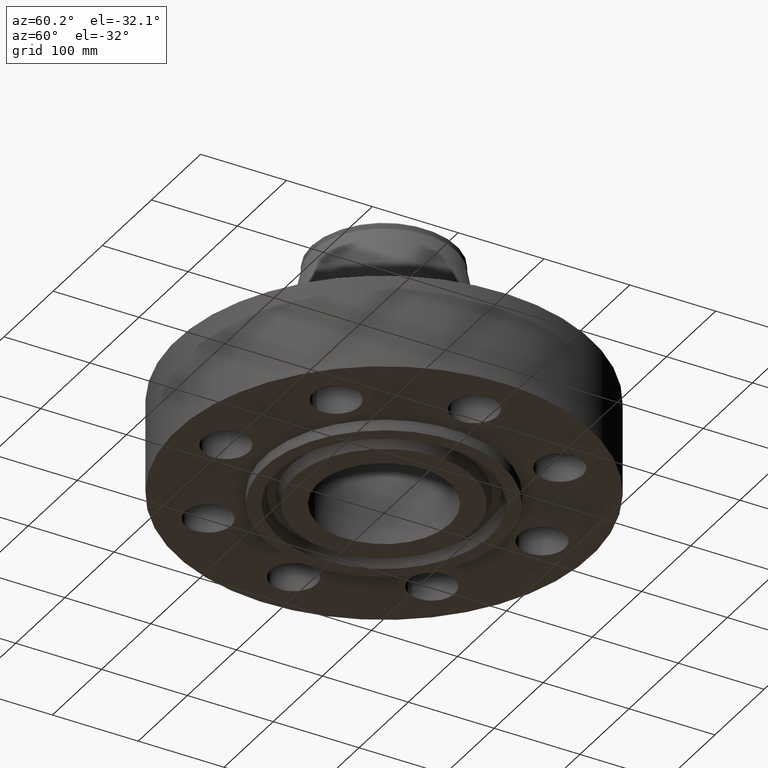
[diagram: clean part render]
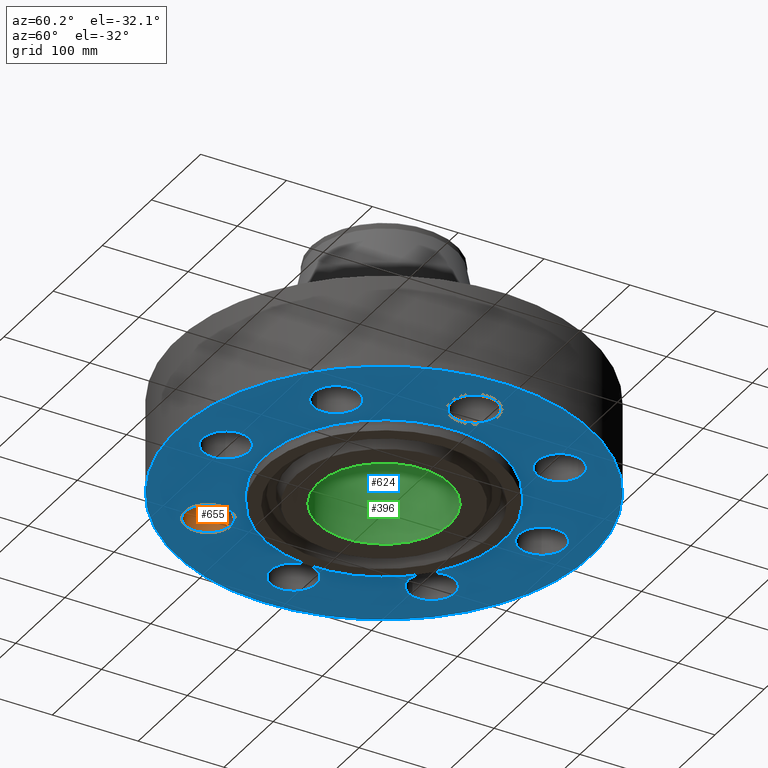
[diagram: same view with three faces highlighted in distinct colors, each labeled with its STEP entity id]
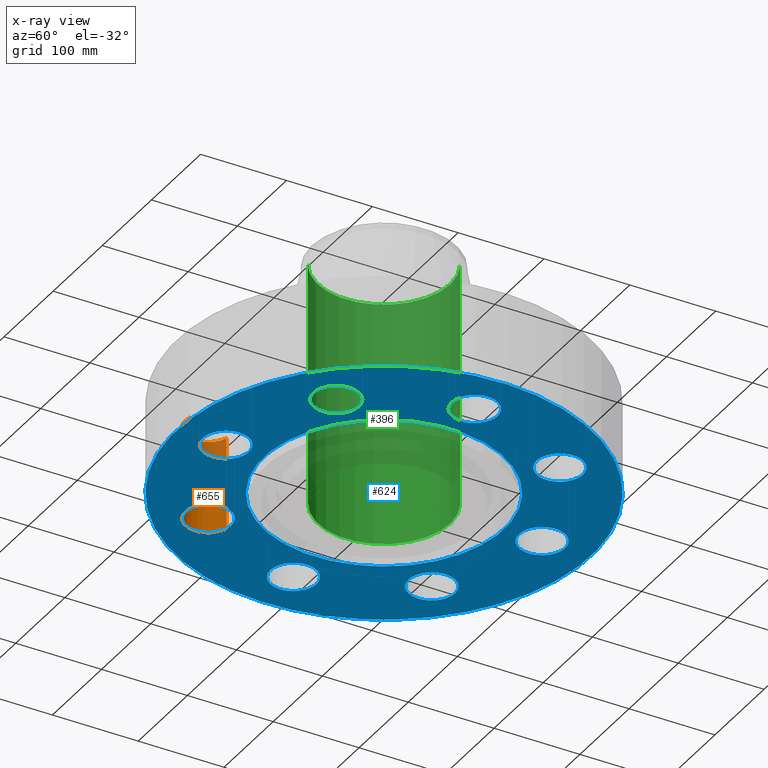
[diagram: x-ray of the same camera — body ghosted, the three highlighted faces saturated]
A machine part, auxiliary view with three faces highlighted in distinct colors.
The next image is the same camera in x-ray (body ghosted, the three faces saturated) — at least one of them is partly hidden behind the body in this view.
Their STEP definitions:

[orange] entity #655 — the highlighted cylindrical surface (edge-blend (fillet) strip) has radius 26.924 mm, axis along (0, 0, -1).
#572=AXIS2_PLACEMENT_3D('Circle Axis2P3D',#570,#571,$) ;
#628=AXIS2_PLACEMENT_3D('Cylinder Axis2P3D',#625,#626,#627) ;
#646=AXIS2_PLACEMENT_3D('Circle Axis2P3D',#644,#645,$) ;
#570=CARTESIAN_POINT('Axis2P3D Location',(-5.12652416362,-5.12652416362,0.)) ;
#574=CARTESIAN_POINT('Vertex',(-4.82809226061,-6.14364677141,0.)) ;
#576=CARTESIAN_POINT('Vertex',(-5.42495606664,-4.10940155584,5.59482469102E-016)) ;
#625=CARTESIAN_POINT('Axis2P3D Location',(-5.12652416362,-5.12652416362,4.24606299214)) ;
#630=CARTESIAN_POINT('Line Origine',(-4.82809226061,-6.14364677141,2.12500000001)) ;
#634=CARTESIAN_POINT('Vertex',(-4.82809226061,-6.14364677141,4.25000000002)) ;
#637=CARTESIAN_POINT('Line Origine',(-5.42495606664,-4.10940155584,2.12500000001)) ;
#641=CARTESIAN_POINT('Vertex',(-5.42495606664,-4.10940155584,4.25000000002)) ;
#644=CARTESIAN_POINT('Axis2P3D Location',(-5.12652416362,-5.12652416362,4.25000000002)) ;
#571=DIRECTION('Axis2P3D Direction',(0.,0.,-0.0393700787402)) ;
#626=DIRECTION('Axis2P3D Direction',(0.,0.,-0.0393700787402)) ;
#627=DIRECTION('Axis2P3D XDirection',(-0.0110842335096,0.0377775444876,0.)) ;
#631=DIRECTION('Vector Direction',(0.,0.,-0.0393700787402)) ;
#638=DIRECTION('Vector Direction',(0.,0.,-0.0393700787402)) ;
#645=DIRECTION('Axis2P3D Direction',(0.,0.,-0.0393700787402)) ;
#632=VECTOR('Line Direction',#631,0.0393700787402) ;
#639=VECTOR('Line Direction',#638,0.0393700787402) ;
#650=ORIENTED_EDGE('',*,*,#636,.F.) ;
#651=ORIENTED_EDGE('',*,*,#578,.T.) ;
#652=ORIENTED_EDGE('',*,*,#643,.T.) ;
#653=ORIENTED_EDGE('',*,*,#648,.F.) ;
#655=ADVANCED_FACE('PartBody',(#654),#629,.F.) ;
#573=CIRCLE('generated circle',#572,1.06) ;
#647=CIRCLE('generated circle',#646,1.06) ;
#629=CYLINDRICAL_SURFACE('generated cylinder',#628,1.06) ;
#578=EDGE_CURVE('',#575,#577,#573,.T.) ;
#636=EDGE_CURVE('',#575,#635,#633,.F.) ;
#643=EDGE_CURVE('',#577,#642,#640,.F.) ;
#648=EDGE_CURVE('',#635,#642,#647,.T.) ;
#649=EDGE_LOOP('',(#650,#651,#652,#653)) ;
#654=FACE_OUTER_BOUND('',#649,.T.) ;
#633=LINE('Line',#630,#632) ;
#640=LINE('Line',#637,#639) ;
#575=VERTEX_POINT('',#574) ;
#577=VERTEX_POINT('',#576) ;
#635=VERTEX_POINT('',#634) ;
#642=VERTEX_POINT('',#641) ;

[blue] entity #624 — the highlighted planar face has unit normal (0, 0, -1).
#51=AXIS2_PLACEMENT_3D('Circle Axis2P3D',#49,#50,$) ;
#77=AXIS2_PLACEMENT_3D('Circle Axis2P3D',#75,#76,$) ;
#99=AXIS2_PLACEMENT_3D('Circle Axis2P3D',#97,#98,$) ;
#134=AXIS2_PLACEMENT_3D('Circle Axis2P3D',#132,#133,$) ;
#447=AXIS2_PLACEMENT_3D('Circle Axis2P3D',#445,#446,$) ;
#471=AXIS2_PLACEMENT_3D('Circle Axis2P3D',#469,#470,$) ;
#484=AXIS2_PLACEMENT_3D('Plane Axis2P3D',#481,#482,#483) ;
#500=AXIS2_PLACEMENT_3D('Circle Axis2P3D',#498,#499,$) ;
#509=AXIS2_PLACEMENT_3D('Circle Axis2P3D',#507,#508,$) ;
#518=AXIS2_PLACEMENT_3D('Circle Axis2P3D',#516,#517,$) ;
#527=AXIS2_PLACEMENT_3D('Circle Axis2P3D',#525,#526,$) ;
#536=AXIS2_PLACEMENT_3D('Circle Axis2P3D',#534,#535,$) ;
#545=AXIS2_PLACEMENT_3D('Circle Axis2P3D',#543,#544,$) ;
#554=AXIS2_PLACEMENT_3D('Circle Axis2P3D',#552,#553,$) ;
#563=AXIS2_PLACEMENT_3D('Circle Axis2P3D',#561,#562,$) ;
#572=AXIS2_PLACEMENT_3D('Circle Axis2P3D',#570,#571,$) ;
#581=AXIS2_PLACEMENT_3D('Circle Axis2P3D',#579,#580,$) ;
#590=AXIS2_PLACEMENT_3D('Circle Axis2P3D',#588,#589,$) ;
#599=AXIS2_PLACEMENT_3D('Circle Axis2P3D',#597,#598,$) ;
#608=AXIS2_PLACEMENT_3D('Circle Axis2P3D',#606,#607,$) ;
#617=AXIS2_PLACEMENT_3D('Circle Axis2P3D',#615,#616,$) ;
#44=CARTESIAN_POINT('Vertex',(-0.930237515608,7.75819107095,5.59482469102E-016)) ;
#49=CARTESIAN_POINT('Axis2P3D Location',(0.,7.25000000003,0.)) ;
#53=CARTESIAN_POINT('Vertex',(0.930237515608,6.74180892911,5.59482469102E-016)) ;
#75=CARTESIAN_POINT('Axis2P3D Location',(0.,7.25000000003,0.)) ;
#97=CARTESIAN_POINT('Axis2P3D Location',(0.,0.,1.1189649382E-015)) ;
#101=CARTESIAN_POINT('Vertex',(-4.55454261676,-8.33703433799,1.1189649382E-015)) ;
#103=CARTESIAN_POINT('Vertex',(4.55454261676,8.33703433799,1.1189649382E-015)) ;
#132=CARTESIAN_POINT('Axis2P3D Location',(0.,0.,1.1189649382E-015)) ;
#442=CARTESIAN_POINT('Vertex',(-2.63684046233,-4.82670409042,1.1189649382E-015)) ;
#445=CARTESIAN_POINT('Axis2P3D Location',(0.,0.,1.1189649382E-015)) ;
#449=CARTESIAN_POINT('Vertex',(2.63684046233,4.82670409042,1.1189649382E-015)) ;
#469=CARTESIAN_POINT('Axis2P3D Location',(0.,0.,1.1189649382E-015)) ;
#481=CARTESIAN_POINT('Axis2P3D Location',(0.,5.50000000002,0.)) ;
#498=CARTESIAN_POINT('Axis2P3D Location',(5.12652416362,5.12652416362,0.)) ;
#502=CARTESIAN_POINT('Vertex',(4.82809226061,6.14364677141,0.)) ;
#504=CARTESIAN_POINT('Vertex',(5.42495606664,4.10940155584,5.59482469102E-016)) ;
#507=CARTESIAN_POINT('Axis2P3D Location',(5.12652416362,5.12652416362,0.)) ;
#516=CARTESIAN_POINT('Axis2P3D Location',(7.25000000003,0.,0.)) ;
#520=CARTESIAN_POINT('Vertex',(7.75819107095,0.930237515608,0.)) ;
#522=CARTESIAN_POINT('Vertex',(6.74180892911,-0.930237515608,5.59482469102E-016)) ;
#525=CARTESIAN_POINT('Axis2P3D Location',(7.25000000003,0.,0.)) ;
#534=CARTESIAN_POINT('Axis2P3D Location',(5.12652416362,-5.12652416362,0.)) ;
#538=CARTESIAN_POINT('Vertex',(6.14364677141,-4.82809226061,0.)) ;
#540=CARTESIAN_POINT('Vertex',(4.10940155584,-5.42495606664,5.59482469102E-016)) ;
#543=CARTESIAN_POINT('Axis2P3D Location',(5.12652416362,-5.12652416362,0.)) ;
#552=CARTESIAN_POINT('Axis2P3D Location',(1.08399728389E-015,-7.25000000003,0.)) ;
#556=CARTESIAN_POINT('Vertex',(0.930237515608,-7.75819107095,0.)) ;
#558=CARTESIAN_POINT('Vertex',(-0.930237515608,-6.74180892911,5.59482469102E-016)) ;
#561=CARTESIAN_POINT('Axis2P3D Location',(1.57354444435E-015,-7.25000000003,0.)) ;
#570=CARTESIAN_POINT('Axis2P3D Location',(-5.12652416362,-5.12652416362,0.)) ;
#574=CARTESIAN_POINT('Vertex',(-4.82809226061,-6.14364677141,0.)) ;
#576=CARTESIAN_POINT('Vertex',(-5.42495606664,-4.10940155584,5.59482469102E-016)) ;
#579=CARTESIAN_POINT('Axis2P3D Location',(-5.12652416362,-5.12652416362,0.)) ;
#588=CARTESIAN_POINT('Axis2P3D Location',(-7.25000000003,-1.1189649382E-015,0.)) ;
#592=CARTESIAN_POINT('Vertex',(-7.75819107095,-0.930237515608,0.)) ;
#594=CARTESIAN_POINT('Vertex',(-6.74180892911,0.930237515608,5.59482469102E-016)) ;
#597=CARTESIAN_POINT('Axis2P3D Location',(-7.25000000003,-1.1189649382E-015,0.)) ;
#606=CARTESIAN_POINT('Axis2P3D Location',(-5.12652416362,5.12652416362,0.)) ;
#610=CARTESIAN_POINT('Vertex',(-6.14364677141,4.82809226061,0.)) ;
#612=CARTESIAN_POINT('Vertex',(-4.10940155584,5.42495606664,5.59482469102E-016)) ;
#615=CARTESIAN_POINT('Axis2P3D Location',(-5.12652416362,5.12652416362,0.)) ;
#50=DIRECTION('Axis2P3D Direction',(0.,-0.,-0.0393700787402)) ;
#76=DIRECTION('Axis2P3D Direction',(0.,-0.,-0.0393700787402)) ;
#98=DIRECTION('Axis2P3D Direction',(0.,0.,-0.0393700787402)) ;
#133=DIRECTION('Axis2P3D Direction',(0.,0.,-0.0393700787402)) ;
#446=DIRECTION('Axis2P3D Direction',(0.,0.,-0.0393700787402)) ;
#470=DIRECTION('Axis2P3D Direction',(0.,0.,-0.0393700787402)) ;
#482=DIRECTION('Axis2P3D Direction',(0.,0.,-0.0393700787402)) ;
#483=DIRECTION('Axis2P3D XDirection',(0.0393700787402,0.,0.)) ;
#499=DIRECTION('Axis2P3D Direction',(0.,0.,-0.0393700787402)) ;
#508=DIRECTION('Axis2P3D Direction',(0.,0.,-0.0393700787402)) ;
#517=DIRECTION('Axis2P3D Direction',(0.,0.,-0.0393700787402)) ;
#526=DIRECTION('Axis2P3D Direction',(0.,0.,-0.0393700787402)) ;
#535=DIRECTION('Axis2P3D Direction',(0.,0.,-0.0393700787402)) ;
#544=DIRECTION('Axis2P3D Direction',(0.,0.,-0.0393700787402)) ;
#553=DIRECTION('Axis2P3D Direction',(0.,0.,-0.0393700787402)) ;
#562=DIRECTION('Axis2P3D Direction',(0.,0.,-0.0393700787402)) ;
#571=DIRECTION('Axis2P3D Direction',(0.,0.,-0.0393700787402)) ;
#580=DIRECTION('Axis2P3D Direction',(0.,0.,-0.0393700787402)) ;
#589=DIRECTION('Axis2P3D Direction',(0.,0.,-0.0393700787402)) ;
#598=DIRECTION('Axis2P3D Direction',(0.,0.,-0.0393700787402)) ;
#607=DIRECTION('Axis2P3D Direction',(0.,0.,-0.0393700787402)) ;
#616=DIRECTION('Axis2P3D Direction',(0.,0.,-0.0393700787402)) ;
#487=ORIENTED_EDGE('',*,*,#105,.T.) ;
#488=ORIENTED_EDGE('',*,*,#136,.T.) ;
#491=ORIENTED_EDGE('',*,*,#79,.F.) ;
#492=ORIENTED_EDGE('',*,*,#55,.F.) ;
#495=ORIENTED_EDGE('',*,*,#473,.F.) ;
#496=ORIENTED_EDGE('',*,*,#451,.F.) ;
#513=ORIENTED_EDGE('',*,*,#506,.F.) ;
#514=ORIENTED_EDGE('',*,*,#511,.F.) ;
#531=ORIENTED_EDGE('',*,*,#524,.F.) ;
#532=ORIENTED_EDGE('',*,*,#529,.F.) ;
#549=ORIENTED_EDGE('',*,*,#542,.F.) ;
#550=ORIENTED_EDGE('',*,*,#547,.F.) ;
#567=ORIENTED_EDGE('',*,*,#560,.F.) ;
#568=ORIENTED_EDGE('',*,*,#565,.F.) ;
#585=ORIENTED_EDGE('',*,*,#578,.F.) ;
#586=ORIENTED_EDGE('',*,*,#583,.F.) ;
#603=ORIENTED_EDGE('',*,*,#596,.F.) ;
#604=ORIENTED_EDGE('',*,*,#601,.F.) ;
#621=ORIENTED_EDGE('',*,*,#614,.F.) ;
#622=ORIENTED_EDGE('',*,*,#619,.F.) ;
#493=FACE_BOUND('',#490,.T.) ;
#497=FACE_BOUND('',#494,.T.) ;
#515=FACE_BOUND('',#512,.T.) ;
#533=FACE_BOUND('',#530,.T.) ;
#551=FACE_BOUND('',#548,.T.) ;
#569=FACE_BOUND('',#566,.T.) ;
#587=FACE_BOUND('',#584,.T.) ;
#605=FACE_BOUND('',#602,.T.) ;
#623=FACE_BOUND('',#620,.T.) ;
#624=ADVANCED_FACE('PartBody',(#489,#493,#497,#515,#533,#551,#569,#587,#605,#623),#485,.T.) ;
#52=CIRCLE('generated circle',#51,1.06) ;
#78=CIRCLE('generated circle',#77,1.06) ;
#100=CIRCLE('generated circle',#99,9.50000000004) ;
#135=CIRCLE('generated circle',#134,9.50000000004) ;
#448=CIRCLE('generated circle',#447,5.50000000002) ;
#472=CIRCLE('generated circle',#471,5.50000000002) ;
#501=CIRCLE('generated circle',#500,1.06) ;
#510=CIRCLE('generated circle',#509,1.06) ;
#519=CIRCLE('generated circle',#518,1.06) ;
#528=CIRCLE('generated circle',#527,1.06) ;
#537=CIRCLE('generated circle',#536,1.06) ;
#546=CIRCLE('generated circle',#545,1.06) ;
#555=CIRCLE('generated circle',#554,1.06) ;
#564=CIRCLE('generated circle',#563,1.06) ;
#573=CIRCLE('generated circle',#572,1.06) ;
#582=CIRCLE('generated circle',#581,1.06) ;
#591=CIRCLE('generated circle',#590,1.06) ;
#600=CIRCLE('generated circle',#599,1.06) ;
#609=CIRCLE('generated circle',#608,1.06) ;
#618=CIRCLE('generated circle',#617,1.06) ;
#55=EDGE_CURVE('',#45,#54,#52,.T.) ;
#79=EDGE_CURVE('',#54,#45,#78,.T.) ;
#105=EDGE_CURVE('',#102,#104,#100,.T.) ;
#136=EDGE_CURVE('',#104,#102,#135,.T.) ;
#451=EDGE_CURVE('',#443,#450,#448,.T.) ;
#473=EDGE_CURVE('',#450,#443,#472,.T.) ;
#506=EDGE_CURVE('',#503,#505,#501,.T.) ;
#511=EDGE_CURVE('',#505,#503,#510,.T.) ;
#524=EDGE_CURVE('',#521,#523,#519,.T.) ;
#529=EDGE_CURVE('',#523,#521,#528,.T.) ;
#542=EDGE_CURVE('',#539,#541,#537,.T.) ;
#547=EDGE_CURVE('',#541,#539,#546,.T.) ;
#560=EDGE_CURVE('',#557,#559,#555,.T.) ;
#565=EDGE_CURVE('',#559,#557,#564,.T.) ;
#578=EDGE_CURVE('',#575,#577,#573,.T.) ;
#583=EDGE_CURVE('',#577,#575,#582,.T.) ;
#596=EDGE_CURVE('',#593,#595,#591,.T.) ;
#601=EDGE_CURVE('',#595,#593,#600,.T.) ;
#614=EDGE_CURVE('',#611,#613,#609,.T.) ;
#619=EDGE_CURVE('',#613,#611,#618,.T.) ;
#486=EDGE_LOOP('',(#487,#488)) ;
#490=EDGE_LOOP('',(#491,#492)) ;
#494=EDGE_LOOP('',(#495,#496)) ;
#512=EDGE_LOOP('',(#513,#514)) ;
#530=EDGE_LOOP('',(#531,#532)) ;
#548=EDGE_LOOP('',(#549,#550)) ;
#566=EDGE_LOOP('',(#567,#568)) ;
#584=EDGE_LOOP('',(#585,#586)) ;
#602=EDGE_LOOP('',(#603,#604)) ;
#620=EDGE_LOOP('',(#621,#622)) ;
#489=FACE_OUTER_BOUND('',#486,.T.) ;
#485=PLANE('',#484) ;
#45=VERTEX_POINT('',#44) ;
#54=VERTEX_POINT('',#53) ;
#102=VERTEX_POINT('',#101) ;
#104=VERTEX_POINT('',#103) ;
#443=VERTEX_POINT('',#442) ;
#450=VERTEX_POINT('',#449) ;
#503=VERTEX_POINT('',#502) ;
#505=VERTEX_POINT('',#504) ;
#521=VERTEX_POINT('',#520) ;
#523=VERTEX_POINT('',#522) ;
#539=VERTEX_POINT('',#538) ;
#541=VERTEX_POINT('',#540) ;
#557=VERTEX_POINT('',#556) ;
#559=VERTEX_POINT('',#558) ;
#575=VERTEX_POINT('',#574) ;
#577=VERTEX_POINT('',#576) ;
#593=VERTEX_POINT('',#592) ;
#595=VERTEX_POINT('',#594) ;
#611=VERTEX_POINT('',#610) ;
#613=VERTEX_POINT('',#612) ;

[green] entity #396 — the highlighted cylindrical surface (partial cylindrical patch) has radius 77.0255 mm, axis along (0, 0, -1).
#343=AXIS2_PLACEMENT_3D('Cylinder Axis2P3D',#340,#341,#342) ;
#382=AXIS2_PLACEMENT_3D('Circle Axis2P3D',#380,#381,$) ;
#387=AXIS2_PLACEMENT_3D('Circle Axis2P3D',#385,#386,$) ;
#340=CARTESIAN_POINT('Axis2P3D Location',(0.,0.,5.12500000002)) ;
#349=CARTESIAN_POINT('Vertex',(1.45385794582,2.66126911894,10.75)) ;
#351=CARTESIAN_POINT('Vertex',(-1.45385794582,-2.66126911894,10.75)) ;
#354=CARTESIAN_POINT('Line Origine',(1.45385794582,2.66126911894,5.12500000002)) ;
#358=CARTESIAN_POINT('Vertex',(1.45385794582,2.66126911894,-0.500000000002)) ;
#365=CARTESIAN_POINT('Vertex',(-1.45385794582,-2.66126911894,-0.500000000002)) ;
#368=CARTESIAN_POINT('Line Origine',(-1.45385794582,-2.66126911894,5.12500000002)) ;
#380=CARTESIAN_POINT('Axis2P3D Location',(0.,0.,10.75)) ;
#385=CARTESIAN_POINT('Axis2P3D Location',(0.,0.,-0.500000000002)) ;
#341=DIRECTION('Axis2P3D Direction',(0.,0.,-0.0393700787402)) ;
#342=DIRECTION('Axis2P3D XDirection',(-0.0188750212049,-0.0345504945626,0.)) ;
#355=DIRECTION('Vector Direction',(0.,0.,-0.0393700787402)) ;
#369=DIRECTION('Vector Direction',(0.,0.,-0.0393700787402)) ;
#381=DIRECTION('Axis2P3D Direction',(0.,0.,-0.0393700787402)) ;
#386=DIRECTION('Axis2P3D Direction',(0.,0.,-0.0393700787402)) ;
#356=VECTOR('Line Direction',#355,0.0393700787402) ;
#370=VECTOR('Line Direction',#369,0.0393700787402) ;
#391=ORIENTED_EDGE('',*,*,#384,.F.) ;
#392=ORIENTED_EDGE('',*,*,#372,.T.) ;
#393=ORIENTED_EDGE('',*,*,#389,.T.) ;
#394=ORIENTED_EDGE('',*,*,#360,.F.) ;
#396=ADVANCED_FACE('PartBody',(#395),#344,.F.) ;
#383=CIRCLE('generated circle',#382,3.03250000001) ;
#388=CIRCLE('generated circle',#387,3.03250000001) ;
#344=CYLINDRICAL_SURFACE('generated cylinder',#343,3.03250000001) ;
#360=EDGE_CURVE('',#350,#359,#357,.T.) ;
#372=EDGE_CURVE('',#352,#366,#371,.T.) ;
#384=EDGE_CURVE('',#352,#350,#383,.T.) ;
#389=EDGE_CURVE('',#366,#359,#388,.T.) ;
#390=EDGE_LOOP('',(#391,#392,#393,#394)) ;
#395=FACE_OUTER_BOUND('',#390,.T.) ;
#357=LINE('Line',#354,#356) ;
#371=LINE('Line',#368,#370) ;
#350=VERTEX_POINT('',#349) ;
#352=VERTEX_POINT('',#351) ;
#359=VERTEX_POINT('',#358) ;
#366=VERTEX_POINT('',#365) ;